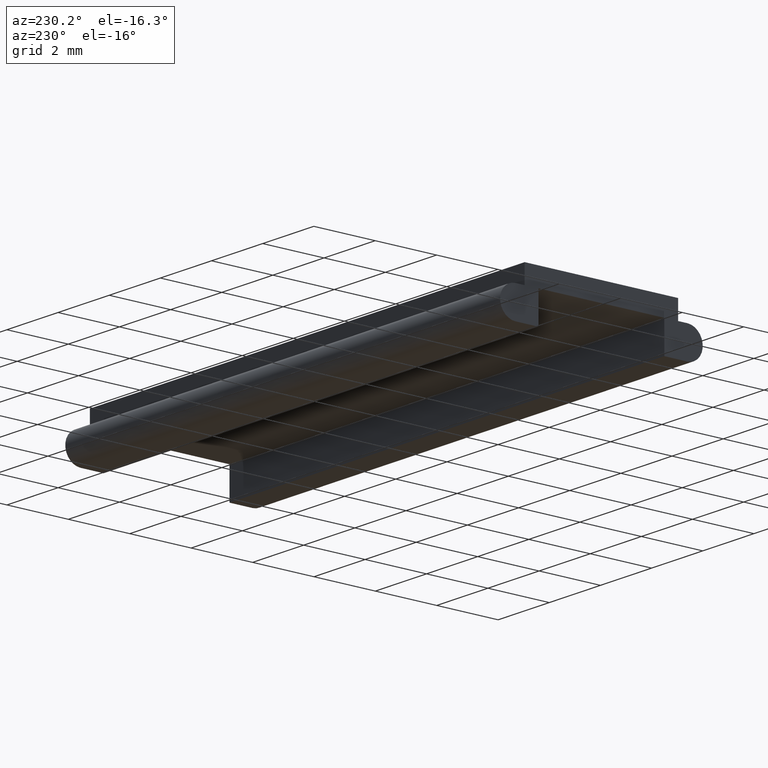
[diagram: clean part render]
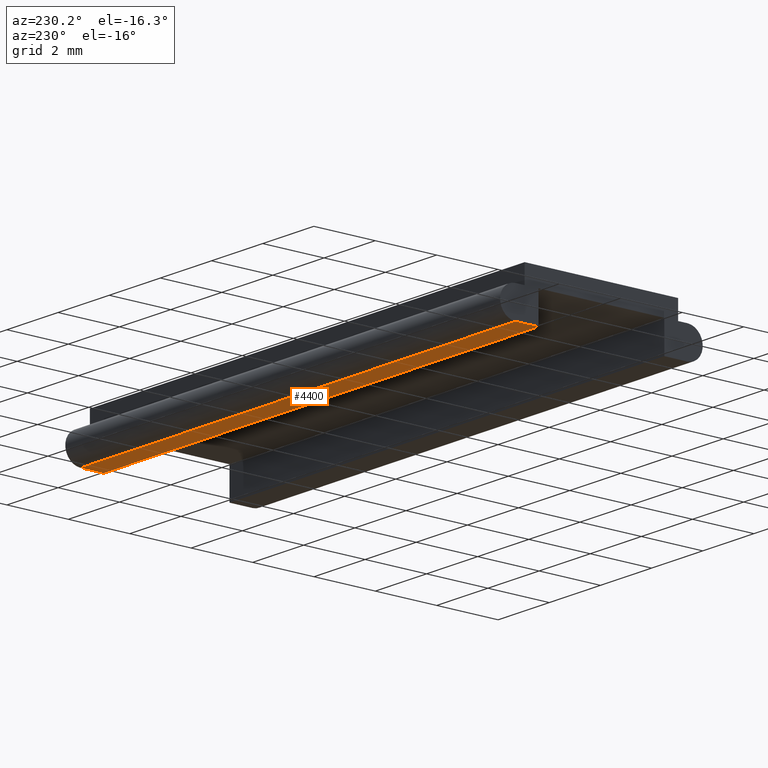
[diagram: same view with one face highlighted and labeled with its STEP entity id]
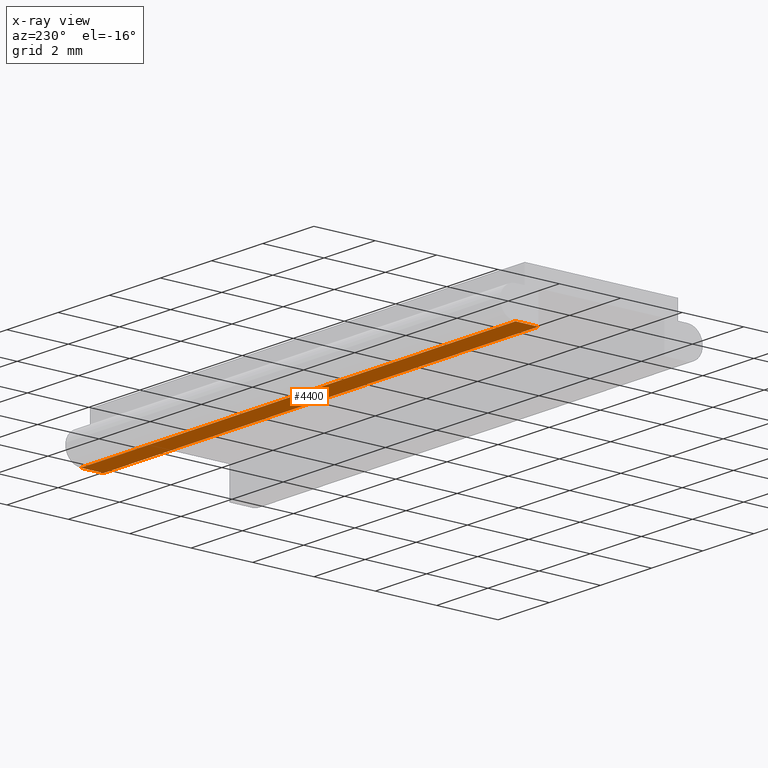
[diagram: x-ray of the same camera — body ghosted, the highlighted face saturated]
A machine part, auxiliary view. The second image highlights one B-rep face of the part: STEP entity #4400.
The next image is the same camera in x-ray: the body ghosted, the highlighted face saturated — about 0% of this face is hidden behind the body in this view.
In plain terms, the highlighted planar face has unit normal (0, 0, -1).
Its self-contained STEP definition (entity closure, byte-faithful):
#860=CARTESIAN_POINT('',(398.426447634406,993.884349945384,
-1.50000000000001));
#870=DIRECTION('',(-0.,-6.12323399573677E-17,-1.));
#880=DIRECTION('',(-1.,0.,0.));
#890=AXIS2_PLACEMENT_3D('',#860,#870,#880);
#900=PLANE('',#890);
#2530=CARTESIAN_POINT('',(398.426447634406,987.874347545384,
-1.50000000000001));
#2540=VERTEX_POINT('',#2530);
#2570=CARTESIAN_POINT('',(398.426447634406,0.,-1.49999999999995));
#2580=DIRECTION('',(0.,-1.,6.12323399573677E-17));
#2590=VECTOR('',#2580,1.);
#2600=LINE('',#2570,#2590);
#2610=CARTESIAN_POINT('',(398.426447634406,987.124347545384,
-1.50000000000002));
#2620=VERTEX_POINT('',#2610);
#2630=EDGE_CURVE('',#2540,#2620,#2600,.T.);
#3390=CARTESIAN_POINT('',(381.426447634406,987.124347545384,
-1.50000000000002));
#3400=VERTEX_POINT('',#3390);
#3430=CARTESIAN_POINT('',(381.426447634406,0.,-1.49999999999995));
#3440=DIRECTION('',(0.,1.,-6.12323399573677E-17));
#3450=VECTOR('',#3440,1.);
#3460=LINE('',#3430,#3450);
#3470=CARTESIAN_POINT('',(381.426447634406,987.874347545384,
-1.50000000000001));
#3480=VERTEX_POINT('',#3470);
#3490=EDGE_CURVE('',#3400,#3480,#3460,.T.);
#3920=CARTESIAN_POINT('',(0.,987.874347545384,-1.50000000000001));
#3930=DIRECTION('',(-1.,0.,0.));
#3940=VECTOR('',#3930,1.);
#3950=LINE('',#3920,#3940);
#3960=EDGE_CURVE('',#2540,#3480,#3950,.T.);
#4290=ORIENTED_EDGE('',*,*,#3490,.T.);
#4300=CARTESIAN_POINT('',(381.426447634406,987.124347545384,
-1.50000000000002));
#4310=DIRECTION('',(1.,0.,0.));
#4320=VECTOR('',#4310,1.);
#4330=LINE('',#4300,#4320);
#4340=EDGE_CURVE('',#3400,#2620,#4330,.T.);
#4350=ORIENTED_EDGE('',*,*,#4340,.F.);
#4360=ORIENTED_EDGE('',*,*,#2630,.T.);
#4370=ORIENTED_EDGE('',*,*,#3960,.F.);
#4380=EDGE_LOOP('',(#4370,#4360,#4350,#4290));
#4390=FACE_OUTER_BOUND('',#4380,.T.);
#4400=ADVANCED_FACE('',(#4390),#900,.T.);